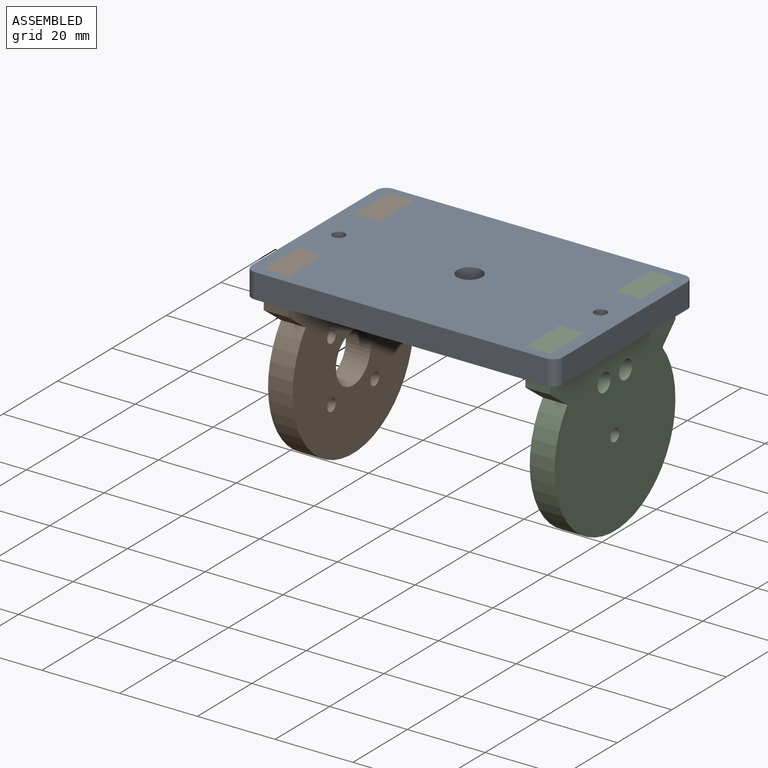
[diagram: assembled view]
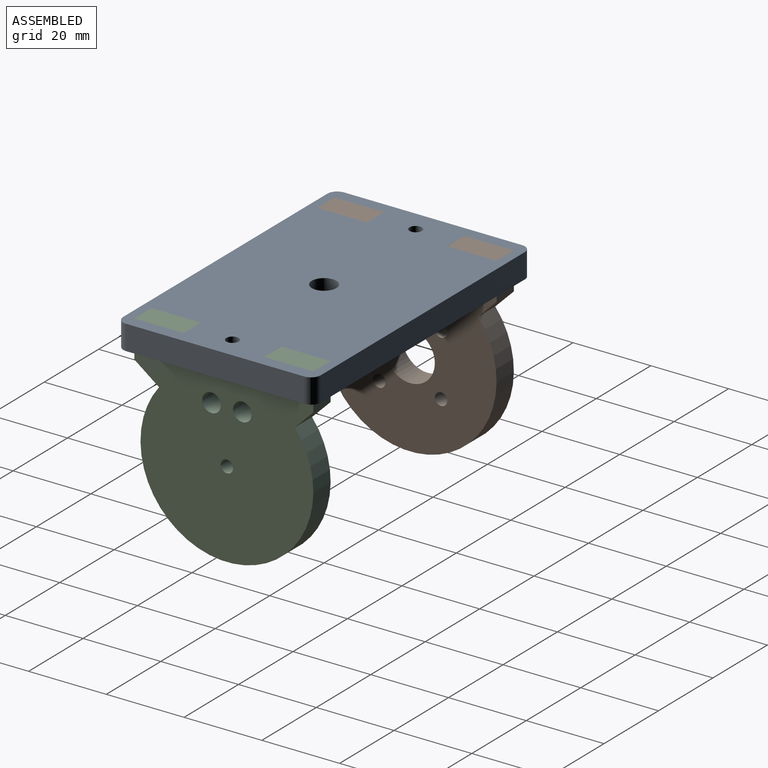
[diagram: assembled view, second angle]
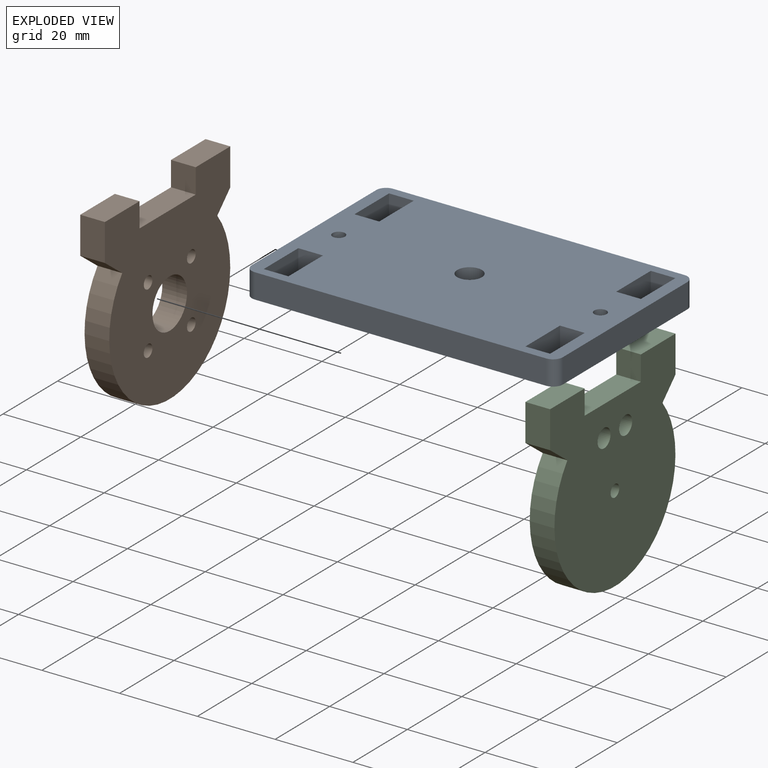
[diagram: exploded view]
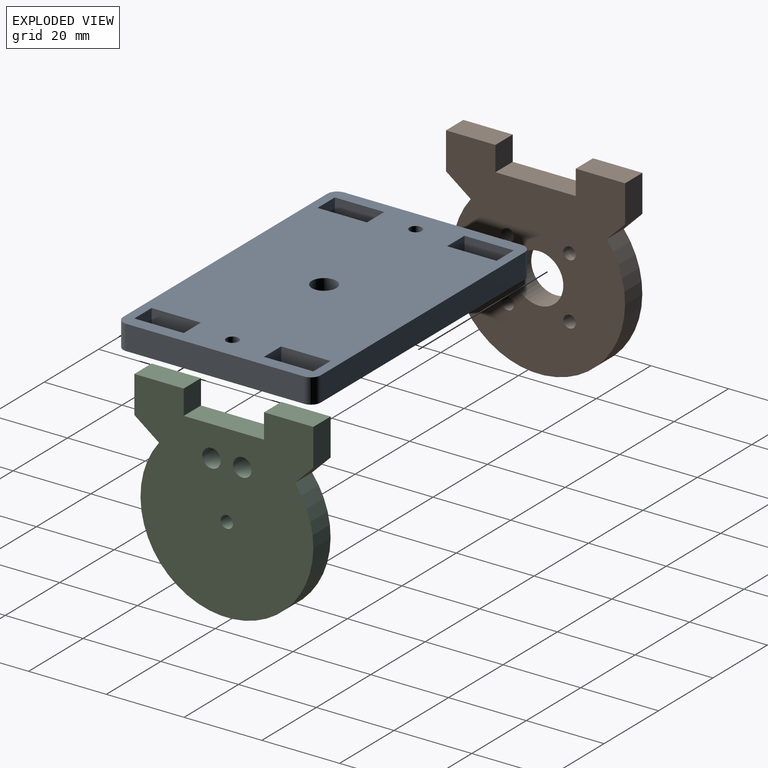
[diagram: exploded view, second angle]
ASSEMBLY  parts=3 mates=2
PART A: 29 faces, bbox 80x50.8x6.4 mm
  f0: plane 12.7x6.35mm, normal (1,0,0), area 80.6mm2, adj f1,f22,f23,f24
  f1: plane 6.35x6.35mm, normal (0,-1,0), area 40.3mm2, adj f0,f2,f23,f24
  f2: plane 12.7x6.35mm, normal (-1,0,0), area 80.6mm2, adj f1,f22,f23,f24
  f3: plane 6.35x6.35mm, normal (0,1,0), area 40.3mm2, adj f4,f15,f23,f24
  f4: plane 12.7x6.35mm, normal (1,0,0), area 80.6mm2, adj f3,f5,f23,f24
  f5: plane 6.35x6.35mm, normal (0,-1,0), area 40.3mm2, adj f4,f15,f23,f24
  f6: plane 12.7x6.35mm, normal (1,0,0), area 80.6mm2, adj f7,f19,f23,f24
  f7: plane 6.35x6.35mm, normal (0,-1,0), area 40.3mm2, adj f6,f8,f23,f24
  f8: plane 12.7x6.35mm, normal (-1,0,0), area 80.6mm2, adj f7,f19,f23,f24
  f9: plane 6.35x6.35mm, normal (0,1,0), area 40.3mm2, adj f10,f20,f23,f24
  f10: plane 12.7x6.35mm, normal (1,0,0), area 80.6mm2, adj f9,f11,f23,f24
  f11: plane 6.35x6.35mm, normal (0,-1,0), area 40.3mm2, adj f10,f20,f23,f24
  f12: plane 45.72x6.35mm, normal (1,0,0), area 290.3mm2, adj f23,f24,f25,f28
  f13: plane 74.93x6.35mm, normal (0,1,0), area 475.8mm2, adj f23,f24,f25,f26
  f14: plane 45.72x6.35mm, normal (-1,0,0), area 290.3mm2, adj f23,f24,f26,f27
  f15: plane 12.7x6.35mm, normal (-1,0,0), area 80.6mm2, adj f3,f5,f23,f24
  f16: cylinder r=1.59mm len=6.35mm, axis (0,0,-1), area 63.3mm2, adj f23,f24
  f17: cylinder r=3.17mm len=6.35mm, axis (0,0,-1), area 126.7mm2, adj f23,f24
  f18: cylinder r=1.59mm len=6.35mm, axis (0,0,-1), area 63.3mm2, adj f23,f24
  f19: plane 6.35x6.35mm, normal (0,1,0), area 40.3mm2, adj f6,f8,f23,f24
  f20: plane 12.7x6.35mm, normal (-1,0,0), area 80.6mm2, adj f9,f11,f23,f24
  f21: plane 74.93x6.35mm, normal (0,-1,0), area 475.8mm2, adj f23,f24,f27,f28
  f22: plane 6.35x6.35mm, normal (0,1,0), area 40.3mm2, adj f0,f2,f23,f24
  f23: plane 80.01x50.8mm, normal (0,0,1), area 3688.9mm2, adj f0,f1,f2,f3,f4,f5,f6,f7
  f24: plane 80.01x50.8mm, normal (0,0,-1), area 3688.9mm2, adj f0,f1,f2,f3,f4,f5,f6,f7
  f25: cylinder r=2.54mm len=6.35mm, axis (0,0,1), area 25.3mm2, adj f12,f13,f23,f24
  f26: cylinder r=2.54mm len=6.35mm, axis (0,0,-1), area 25.3mm2, adj f13,f14,f23,f24
  f27: cylinder r=2.54mm len=6.35mm, axis (0,0,1), area 25.3mm2, adj f14,f21,f23,f24
  f28: cylinder r=2.54mm len=6.35mm, axis (0,0,-1), area 25.3mm2, adj f12,f21,f23,f24
PART B: 17 faces, bbox 6.4x46.1x50.3 mm
  f0: plane 12.7x6.35mm, normal (0,0,-1), area 80.6mm2, adj f1,f13,f15,f16
  f1: plane 6.35x6.35mm, normal (0,1,0), area 40.3mm2, adj f0,f2,f15,f16
  f2: plane 20.65x6.35mm, normal (0,0,-1), area 131.1mm2, adj f1,f3,f15,f16
  f3: plane 6.35x6.35mm, normal (0,-1,0), area 40.3mm2, adj f2,f4,f15,f16
  f4: plane 12.7x6.35mm, normal (0,0,-1), area 80.6mm2, adj f3,f5,f15,f16
  f5: plane 9.53x6.35mm, normal (0,1,0), area 60.5mm2, adj f4,f6,f15,f16
  f6: plane 6.35x4.78mm, normal (0,0.71,0.71), area 42.8mm2, adj f5,f7,f15,f16
  f7: cylinder r=22.23mm len=44.45mm, axis (-1,0,0), area 631.6mm2, adj f6,f8,f15,f16
  f8: plane 6.35x6.35mm, normal (0,-0.6,0.8), area 50.4mm2, adj f7,f13,f15,f16
  f9: cylinder r=1.59mm len=6.35mm, axis (-1,0,0), area 63.3mm2, adj f15,f16
  f10: cylinder r=1.59mm len=6.35mm, axis (-1,0,0), area 63.3mm2, adj f15,f16
  f11: cylinder r=1.59mm len=6.35mm, axis (-1,0,0), area 63.3mm2, adj f15,f16
  f12: cylinder r=6.35mm len=12.7mm, axis (-1,0,0), area 253.4mm2, adj f15,f16
  f13: plane 9.53x6.35mm, normal (0,-1,0), area 60.5mm2, adj f0,f8,f15,f16
  f14: cylinder r=1.59mm len=6.35mm, axis (-1,0,0), area 63.3mm2, adj f15,f16
  f15: plane 50.26x46.05mm, normal (1,0,0), area 1687.4mm2, adj f0,f1,f2,f3,f4,f5,f6,f7
  f16: plane 50.26x46.05mm, normal (-1,0,0), area 1687.4mm2, adj f0,f1,f2,f3,f4,f5,f6,f7
PART C: 15 faces, bbox 6.4x46.1x50.3 mm
  f0: plane 12.7x6.35mm, normal (0,0,-1), area 80.6mm2, adj f1,f11,f13,f14
  f1: plane 6.35x6.35mm, normal (0,1,0), area 40.3mm2, adj f0,f2,f13,f14
  f2: plane 20.65x6.35mm, normal (0,0,-1), area 131.1mm2, adj f1,f3,f13,f14
  f3: plane 6.35x6.35mm, normal (0,-1,0), area 40.3mm2, adj f2,f4,f13,f14
  f4: plane 12.7x6.35mm, normal (0,0,-1), area 80.6mm2, adj f3,f5,f13,f14
  f5: plane 9.53x6.35mm, normal (0,1,0), area 60.5mm2, adj f4,f6,f13,f14
  f6: plane 6.35x4.78mm, normal (0,0.71,0.71), area 42.8mm2, adj f5,f7,f13,f14
  f7: cylinder r=22.23mm len=44.45mm, axis (-1,0,0), area 631.6mm2, adj f6,f8,f13,f14
  f8: plane 6.35x6.35mm, normal (0,-0.6,0.8), area 50.4mm2, adj f7,f11,f13,f14
  f9: cylinder r=2.38mm len=6.35mm, axis (-1,0,0), area 95mm2, adj f13,f14
  f10: cylinder r=1.59mm len=6.35mm, axis (-1,0,0), area 63.3mm2, adj f13,f14
  f11: plane 9.53x6.35mm, normal (0,-1,0), area 60.5mm2, adj f0,f8,f13,f14
  f12: cylinder r=2.38mm len=6.35mm, axis (-1,0,0), area 95mm2, adj f13,f14
  f13: plane 50.26x46.05mm, normal (1,0,0), area 1802.2mm2, adj f0,f1,f2,f3,f4,f5,f6,f7
  f14: plane 50.26x46.05mm, normal (-1,0,0), area 1802.2mm2, adj f0,f1,f2,f3,f4,f5,f6,f7
PLACE A at identity fixed
PLACE B rot(axis=(0,1,0),180deg) t=(-30.48,0.79,-21.69)mm
PLACE C rot(axis=(0,1,0),180deg) t=(36.83,0.79,-21.69)mm
MATE fastened C.f0 <-> A.f23  axis (0,0,1) through (33.66,-16.67,6.35)mm
MATE fastened B.f0 <-> A.f23  axis (0,0,1) through (-33.66,-16.67,6.35)mm
